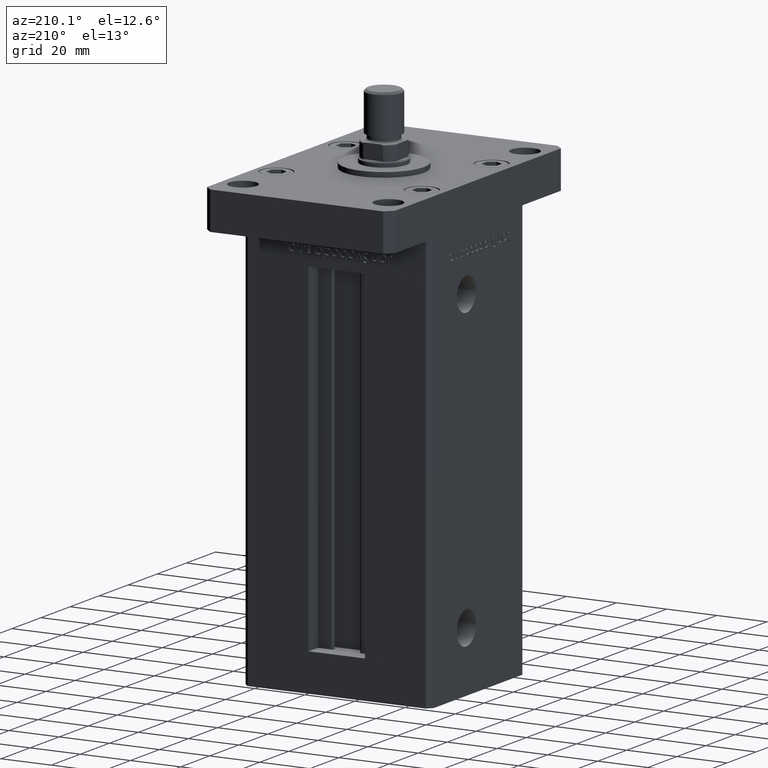
[diagram: clean part render]
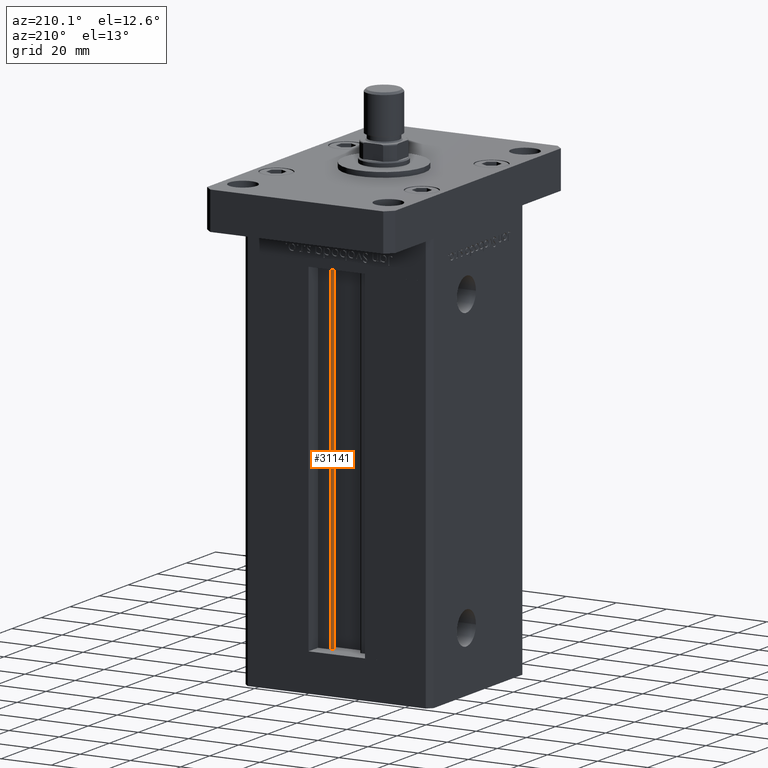
[diagram: same view with one face highlighted and labeled with its STEP entity id]
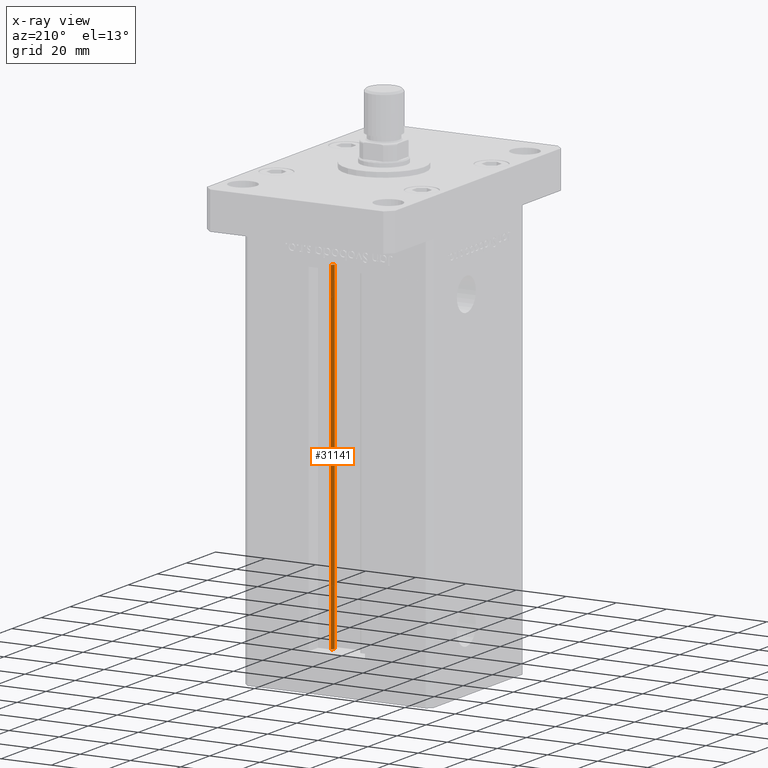
[diagram: x-ray of the same camera — body ghosted, the highlighted face saturated]
A machine part, auxiliary view. The second image highlights one B-rep face of the part: STEP entity #31141.
The next image is the same camera in x-ray: the body ghosted, the highlighted face saturated — about 0% of this face is hidden behind the body in this view.
In plain terms, the highlighted cylindrical surface (edge-blend (fillet) strip) has radius 0.9333 mm, axis along (0, 0, 1).
Its self-contained STEP definition (entity closure, byte-faithful):
#171 = DIRECTION ( 'NONE',  ( -0.000000000000000000, -0.000000000000000000, -1.000000000000000000 ) ) ;
#377 = CIRCLE ( 'NONE', #51871, 0.9333333333340008142 ) ;
#1276 = CARTESIAN_POINT ( 'NONE',  ( 5.375042956467948052, 24.59999999999899245, 136.0000000000000000 ) ) ;
#2226 = DIRECTION ( 'NONE',  ( 1.000000000000000000, 0.000000000000000000, 0.000000000000000000 ) ) ;
#3218 = CARTESIAN_POINT ( 'NONE',  ( 6.183333333334001480, 25.06666666666599141, 0.000000000000000000 ) ) ;
#3732 = CARTESIAN_POINT ( 'NONE',  ( 6.183333333334001480, 25.06666666666599141, 0.000000000000000000 ) ) ;
#3917 = VERTEX_POINT ( 'NONE', #10718 ) ;
#7142 = CARTESIAN_POINT ( 'NONE',  ( 6.183333333334001480, 25.06666666666599141, 136.0000000000000000 ) ) ;
#7676 = VECTOR ( 'NONE', #48727, 1000.000000000000000 ) ;
#8631 = VERTEX_POINT ( 'NONE', #22255 ) ;
#10444 = CIRCLE ( 'NONE', #19188, 0.9333333333340008142 ) ;
#10718 = CARTESIAN_POINT ( 'NONE',  ( 5.375042956467947164, 24.59999999999899245, 0.000000000000000000 ) ) ;
#11310 = LINE ( 'NONE', #37244, #7676 ) ;
#16056 = CYLINDRICAL_SURFACE ( 'NONE', #42458, 0.9333333333340008142 ) ;
#17950 = VERTEX_POINT ( 'NONE', #1276 ) ;
#18095 = ORIENTED_EDGE ( 'NONE', *, *, #35313, .F. ) ;
#18300 = EDGE_CURVE ( 'NONE', #3917, #17950, #30720, .T. ) ;
#19188 = AXIS2_PLACEMENT_3D ( 'NONE', #3732, #171, #33502 ) ;
#19433 = DIRECTION ( 'NONE',  ( 0.000000000000000000, 0.000000000000000000, -1.000000000000000000 ) ) ;
#22255 = CARTESIAN_POINT ( 'NONE',  ( 6.183333333334001480, 25.99999999999999289, 0.000000000000000000 ) ) ;
#26624 = DIRECTION ( 'NONE',  ( -0.000000000000000000, -0.000000000000000000, 1.000000000000000000 ) ) ;
#28011 = CARTESIAN_POINT ( 'NONE',  ( 6.183333333334001480, 25.99999999999999289, 136.0000000000000000 ) ) ;
#28357 = DIRECTION ( 'NONE',  ( 1.000000000000000000, 0.000000000000000000, 0.000000000000000000 ) ) ;
#30720 = LINE ( 'NONE', #35361, #50036 ) ;
#31141 = ADVANCED_FACE ( 'NONE', ( #43940 ), #16056, .T. ) ;
#33502 = DIRECTION ( 'NONE',  ( 1.000000000000000000, 0.000000000000000000, 0.000000000000000000 ) ) ;
#35313 = EDGE_CURVE ( 'NONE', #8631, #38616, #11310, .T. ) ;
#35361 = CARTESIAN_POINT ( 'NONE',  ( 5.375042956467947164, 24.59999999999899245, 0.000000000000000000 ) ) ;
#37244 = CARTESIAN_POINT ( 'NONE',  ( 6.183333333334001480, 25.99999999999999289, 0.000000000000000000 ) ) ;
#38616 = VERTEX_POINT ( 'NONE', #28011 ) ;
#40716 = EDGE_LOOP ( 'NONE', ( #18095, #48848, #44913, #51032 ) ) ;
#42458 = AXIS2_PLACEMENT_3D ( 'NONE', #3218, #48571, #28357 ) ;
#43830 = EDGE_CURVE ( 'NONE', #3917, #8631, #10444, .T. ) ;
#43940 = FACE_OUTER_BOUND ( 'NONE', #40716, .T. ) ;
#44913 = ORIENTED_EDGE ( 'NONE', *, *, #18300, .T. ) ;
#48571 = DIRECTION ( 'NONE',  ( -0.000000000000000000, -0.000000000000000000, 1.000000000000000000 ) ) ;
#48727 = DIRECTION ( 'NONE',  ( -0.000000000000000000, -0.000000000000000000, 1.000000000000000000 ) ) ;
#48848 = ORIENTED_EDGE ( 'NONE', *, *, #43830, .F. ) ;
#50036 = VECTOR ( 'NONE', #26624, 1000.000000000000000 ) ;
#51032 = ORIENTED_EDGE ( 'NONE', *, *, #52045, .T. ) ;
#51871 = AXIS2_PLACEMENT_3D ( 'NONE', #7142, #19433, #2226 ) ;
#52045 = EDGE_CURVE ( 'NONE', #17950, #38616, #377, .T. ) ;